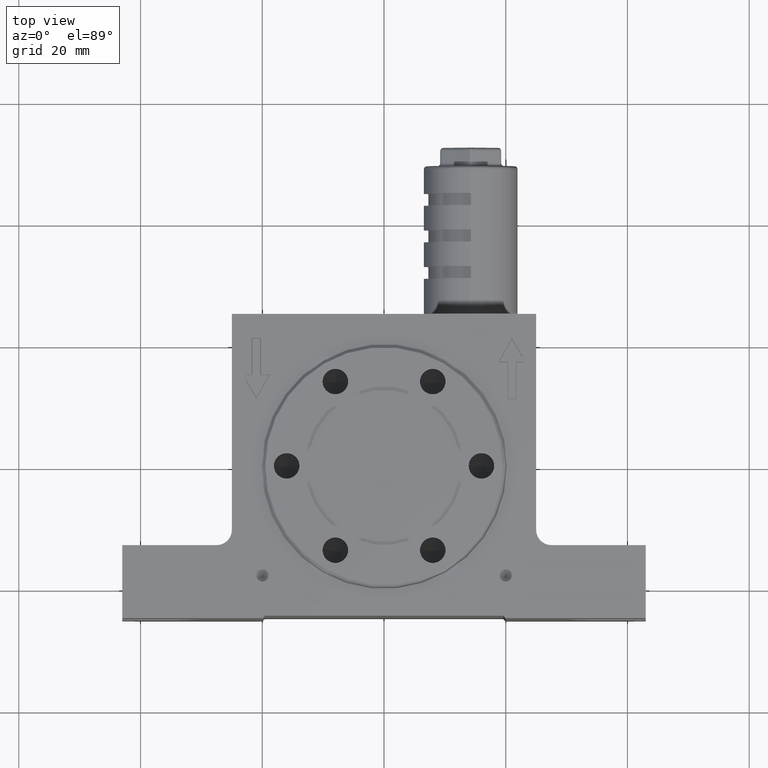
[diagram: clean part render]
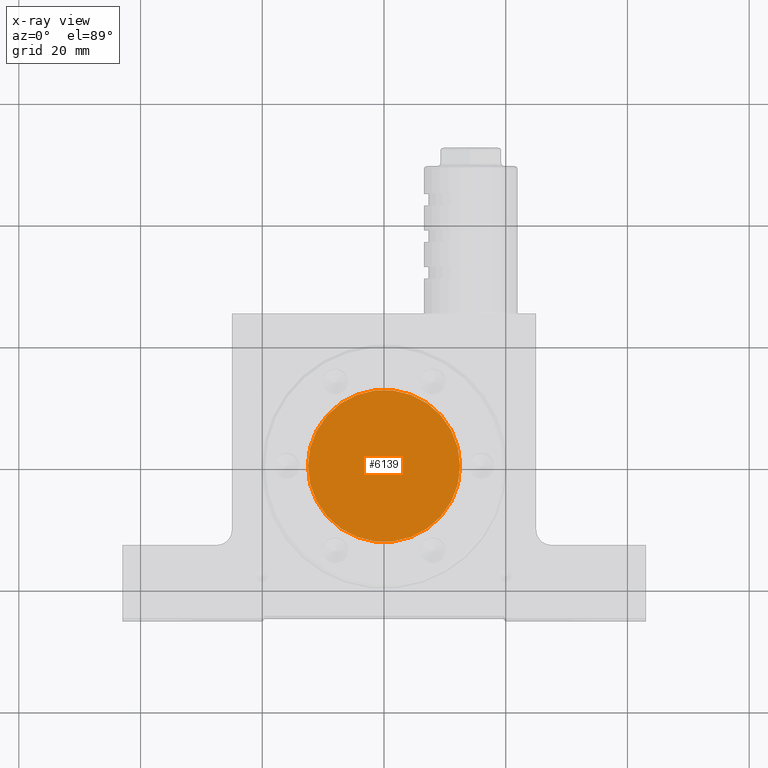
[diagram: x-ray — body ghosted, one internal face saturated and labeled with its STEP entity id]
A machine part, top view, then the same camera in x-ray: the body is ghosted and one INTERNAL B-rep face — a face not visible from any outside direction — is saturated and labeled: STEP entity #6139.
In plain terms, the highlighted planar face has unit normal (0, 0, 1).
Its self-contained STEP definition (entity closure, byte-faithful):
#32 = DIRECTION ( 'NONE',  ( 0.0000000000000000000, 0.0000000000000000000, 1.000000000000000000 ) ) ;
#677 = AXIS2_PLACEMENT_3D ( 'NONE', #1549, #5140, #3784 ) ;
#1370 = CIRCLE ( 'NONE', #6653, 12.50000000000000000 ) ;
#1549 = CARTESIAN_POINT ( 'NONE',  ( 0.0000000000000000000, 0.0000000000000000000, 15.94999999999999900 ) ) ;
#1668 = ORIENTED_EDGE ( 'NONE', *, *, #8452, .F. ) ;
#2064 = FACE_OUTER_BOUND ( 'NONE', #3095, .T. ) ;
#2103 = EDGE_CURVE ( 'NONE', #4971, #5890, #1370, .T. ) ;
#2235 = DIRECTION ( 'NONE',  ( 1.000000000000000000, 0.0000000000000000000, 0.0000000000000000000 ) ) ;
#3094 = CARTESIAN_POINT ( 'NONE',  ( 0.0000000000000000000, 0.0000000000000000000, 15.94999999999999900 ) ) ;
#3095 = EDGE_LOOP ( 'NONE', ( #6460, #1668 ) ) ;
#3607 = CARTESIAN_POINT ( 'NONE',  ( 0.0000000000000000000, 0.0000000000000000000, 15.94999999999999900 ) ) ;
#3784 = DIRECTION ( 'NONE',  ( 1.000000000000000000, 0.0000000000000000000, -0.0000000000000000000 ) ) ;
#4452 = DIRECTION ( 'NONE',  ( 0.0000000000000000000, 0.0000000000000000000, 1.000000000000000000 ) ) ;
#4971 = VERTEX_POINT ( 'NONE', #7035 ) ;
#5140 = DIRECTION ( 'NONE',  ( 0.0000000000000000000, 0.0000000000000000000, 1.000000000000000000 ) ) ;
#5377 = DIRECTION ( 'NONE',  ( 1.000000000000000000, 0.0000000000000000000, 0.0000000000000000000 ) ) ;
#5890 = VERTEX_POINT ( 'NONE', #7569 ) ;
#6139 = ADVANCED_FACE ( 'NONE', ( #2064 ), #6519, .F. ) ;
#6460 = ORIENTED_EDGE ( 'NONE', *, *, #2103, .F. ) ;
#6519 = PLANE ( 'NONE',  #677 ) ;
#6653 = AXIS2_PLACEMENT_3D ( 'NONE', #3094, #32, #2235 ) ;
#6815 = CIRCLE ( 'NONE', #8508, 12.50000000000000000 ) ;
#7035 = CARTESIAN_POINT ( 'NONE',  ( -12.50000000000000000, 0.0000000000000000000, 15.94999999999999900 ) ) ;
#7569 = CARTESIAN_POINT ( 'NONE',  ( 12.50000000000000000, 1.530808498934191500E-015, 15.94999999999999900 ) ) ;
#8452 = EDGE_CURVE ( 'NONE', #5890, #4971, #6815, .T. ) ;
#8508 = AXIS2_PLACEMENT_3D ( 'NONE', #3607, #4452, #5377 ) ;